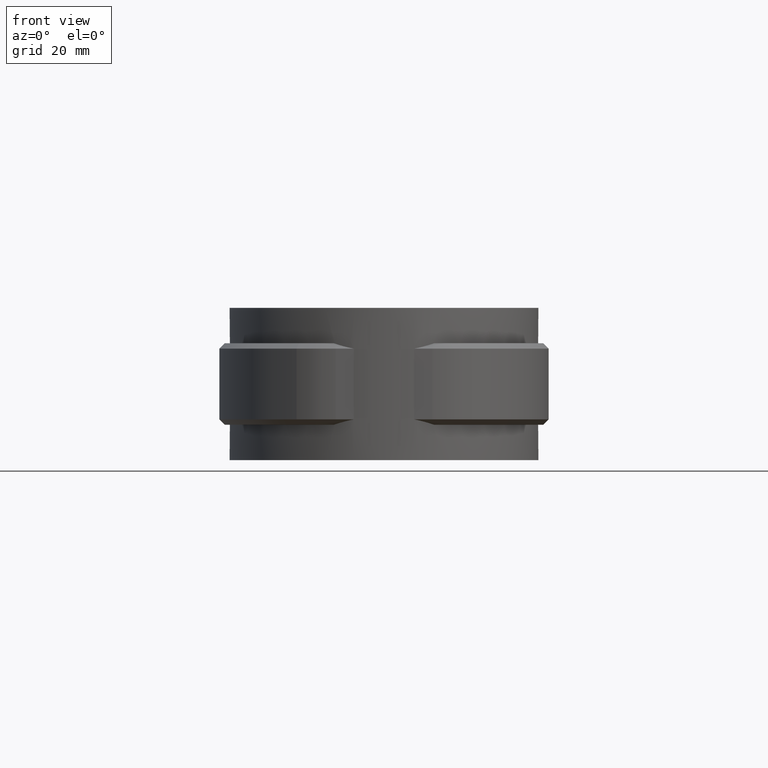
[diagram: clean part render]
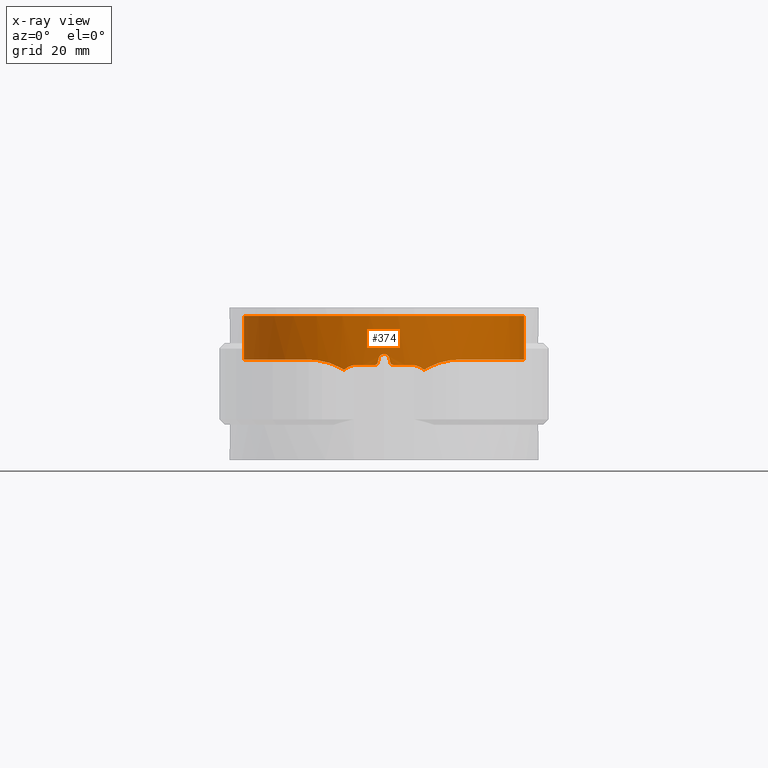
[diagram: x-ray — body ghosted, one internal face saturated and labeled with its STEP entity id]
A machine part, front view, then the same camera in x-ray: the body is ghosted and one INTERNAL B-rep face — a face not visible from any outside direction — is saturated and labeled: STEP entity #374.
In plain terms, the highlighted cylindrical surface (partial cylindrical patch) has radius 25.8 mm, axis along (0, 0, 1).
Its self-contained STEP definition (entity closure, byte-faithful):
#374 = ADVANCED_FACE( '', ( #741 ), #742, .F. );
#741 = FACE_OUTER_BOUND( '', #1683, .T. );
#742 = CYLINDRICAL_SURFACE( '', #1684, 25.8000000000000 );
#1683 = EDGE_LOOP( '', ( #3332, #3333, #3334, #3335, #3336, #3337, #3338, #3339, #3340, #3341, #3342, #3343, #3344, #3345, #3346, #3347, #3348, #3349 ) );
#1684 = AXIS2_PLACEMENT_3D( '', #3350, #3351, #3352 );
#3332 = ORIENTED_EDGE( '', *, *, #7384, .T. );
#3333 = ORIENTED_EDGE( '', *, *, #7349, .T. );
#3334 = ORIENTED_EDGE( '', *, *, #7351, .T. );
#3335 = ORIENTED_EDGE( '', *, *, #7385, .T. );
#3336 = ORIENTED_EDGE( '', *, *, #7386, .T. );
#3337 = ORIENTED_EDGE( '', *, *, #7387, .T. );
#3338 = ORIENTED_EDGE( '', *, *, #7388, .T. );
#3339 = ORIENTED_EDGE( '', *, *, #7389, .T. );
#3340 = ORIENTED_EDGE( '', *, *, #7390, .T. );
#3341 = ORIENTED_EDGE( '', *, *, #7391, .T. );
#3342 = ORIENTED_EDGE( '', *, *, #7392, .T. );
#3343 = ORIENTED_EDGE( '', *, *, #7393, .T. );
#3344 = ORIENTED_EDGE( '', *, *, #7371, .T. );
#3345 = ORIENTED_EDGE( '', *, *, #7394, .F. );
#3346 = ORIENTED_EDGE( '', *, *, #7336, .T. );
#3347 = ORIENTED_EDGE( '', *, *, #7395, .T. );
#3348 = ORIENTED_EDGE( '', *, *, #7367, .T. );
#3349 = ORIENTED_EDGE( '', *, *, #7379, .T. );
#3350 = CARTESIAN_POINT( '', ( 0.000000000000000, 0.000000000000000, 0.000000000000000 ) );
#3351 = DIRECTION( '', ( 0.000000000000000, 0.000000000000000, 1.00000000000000 ) );
#3352 = DIRECTION( '', ( 1.00000000000000, -6.12303176911189E-017, 0.000000000000000 ) );
#7336 = EDGE_CURVE( '', #8357, #8355, #8358, .T. );
#7349 = EDGE_CURVE( '', #8363, #8380, #8382, .T. );
#7351 = EDGE_CURVE( '', #8380, #8383, #8385, .T. );
#7367 = EDGE_CURVE( '', #8413, #8411, #8414, .T. );
#7371 = EDGE_CURVE( '', #8420, #8421, #8422, .T. );
#7379 = EDGE_CURVE( '', #8411, #8434, #8436, .T. );
#7384 = EDGE_CURVE( '', #8434, #8363, #8444, .T. );
#7385 = EDGE_CURVE( '', #8383, #8445, #8446, .T. );
#7386 = EDGE_CURVE( '', #8445, #8447, #8448, .T. );
#7387 = EDGE_CURVE( '', #8447, #8449, #8450, .T. );
#7388 = EDGE_CURVE( '', #8449, #8451, #8452, .T. );
#7389 = EDGE_CURVE( '', #8451, #8453, #8454, .T. );
#7390 = EDGE_CURVE( '', #8453, #8455, #8456, .T. );
#7391 = EDGE_CURVE( '', #8455, #8457, #8458, .T. );
#7392 = EDGE_CURVE( '', #8457, #8459, #8460, .T. );
#7393 = EDGE_CURVE( '', #8459, #8420, #8461, .T. );
#7394 = EDGE_CURVE( '', #8357, #8421, #8462, .T. );
#7395 = EDGE_CURVE( '', #8355, #8413, #8463, .T. );
#8355 = VERTEX_POINT( '', #10169 );
#8357 = VERTEX_POINT( '', #10171 );
#8358 = CIRCLE( '', #10172, 25.8000000000000 );
#8363 = VERTEX_POINT( '', #10178 );
#8380 = VERTEX_POINT( '', #10252 );
#8382 = B_SPLINE_CURVE_WITH_KNOTS( '', 3, ( #10255, #10256, #10257, #10258, #10259, #10260, #10261, #10262, #10263, #10264 ), .UNSPECIFIED., .F., .F., ( 4, 2, 2, 2, 4 ), ( 0.00847385294775890, 0.00913614341819713, 0.00979843388863536, 0.0104607243590736, 0.0111230148295118 ), .UNSPECIFIED. );
#8383 = VERTEX_POINT( '', #10265 );
#8385 = CIRCLE( '', #10268, 25.8000000000000 );
#8411 = VERTEX_POINT( '', #10554 );
#8413 = VERTEX_POINT( '', #10562 );
#8414 = B_SPLINE_CURVE_WITH_KNOTS( '', 3, ( #10563, #10564, #10565, #10566, #10567, #10568, #10569, #10570, #10571, #10572, #10573, #10574, #10575, #10576, #10577, #10578, #10579, #10580, #10581, #10582, #10583, #10584, #10585, #10586, #10587, #10588, #10589, #10590, #10591, #10592, #10593, #10594, #10595, #10596, #10597, #10598, #10599, #10600, #10601, #10602, #10603, #10604, #10605, #10606, #10607, #10608 ), .UNSPECIFIED., .F., .F., ( 4, 2, 2, 2, 2, 2, 2, 2, 2, 2, 2, 2, 2, 2, 2, 2, 2, 2, 2, 2, 2, 2, 4 ), ( 3.46944695195361E-018, 0.00373618031947293, 0.00747236063894587, 0.00934045079868233, 0.0112085409584188, 0.0149447212778917, 0.0168128114376282, 0.0186809015973647, 0.0224170819168376, 0.0242851720765741, 0.0261532622363106, 0.0298894425557836, 0.0336256228752565, 0.0354937130349930, 0.0373618031947295, 0.0410979835142024, 0.0429660736739389, 0.0448341638336754, 0.0485703441531484, 0.0504384343128848, 0.0523065244726213, 0.0560427047920943, 0.0597788851115672 ), .UNSPECIFIED. );
#8420 = VERTEX_POINT( '', #10644 );
#8421 = VERTEX_POINT( '', #10645 );
#8422 = B_SPLINE_CURVE_WITH_KNOTS( '', 3, ( #10646, #10647, #10648, #10649, #10650, #10651, #10652, #10653, #10654, #10655, #10656, #10657, #10658, #10659, #10660, #10661, #10662, #10663, #10664, #10665, #10666, #10667, #10668, #10669, #10670, #10671, #10672, #10673, #10674, #10675, #10676, #10677, #10678, #10679, #10680, #10681, #10682, #10683, #10684, #10685, #10686, #10687, #10688, #10689, #10690, #10691 ), .UNSPECIFIED., .F., .F., ( 4, 2, 2, 2, 2, 2, 2, 2, 2, 2, 2, 2, 2, 2, 2, 2, 2, 2, 2, 2, 2, 2, 4 ), ( 9.81307786677359E-018, 0.00373617763623475, 0.00747235527246950, 0.00934044409058687, 0.0112085329087042, 0.0149447105449390, 0.0168127993630564, 0.0186808881811737, 0.0224170658174085, 0.0242851546355259, 0.0261532434536433, 0.0298894210898780, 0.0336255987261128, 0.0354936875442301, 0.0373617763623475, 0.0410979539985822, 0.0429660428166996, 0.0448341316348170, 0.0485703092710517, 0.0504383980891691, 0.0523064869072865, 0.0560426645435212, 0.0597788421797560 ), .UNSPECIFIED. );
#8434 = VERTEX_POINT( '', #10788 );
#8436 = B_SPLINE_CURVE_WITH_KNOTS( '', 3, ( #10794, #10795, #10796, #10797, #10798, #10799, #10800, #10801, #10802, #10803 ), .UNSPECIFIED., .F., .F., ( 4, 2, 2, 2, 4 ), ( 0.000000000000000, 0.00171733910747662, 0.00343467821495323, 0.00515201732242985, 0.00686935642990647 ), .UNSPECIFIED. );
#8444 = B_SPLINE_CURVE_WITH_KNOTS( '', 3, ( #10832, #10833, #10834, #10835 ), .UNSPECIFIED., .F., .F., ( 4, 4 ), ( 7.11061015606816E-016, 0.000883886196938729 ), .UNSPECIFIED. );
#8445 = VERTEX_POINT( '', #10836 );
#8446 = B_SPLINE_CURVE_WITH_KNOTS( '', 3, ( #10837, #10838, #10839, #10840, #10841, #10842 ), .UNSPECIFIED., .F., .F., ( 4, 2, 4 ), ( 8.20849171219253E-018, 0.000336076006616285, 0.000672152013232562 ), .UNSPECIFIED. );
#8447 = VERTEX_POINT( '', #10843 );
#8448 = ELLIPSE( '', #10844, 117.533393289804, 25.8000000000000 );
#8449 = VERTEX_POINT( '', #10845 );
#8450 = B_SPLINE_CURVE_WITH_KNOTS( '', 3, ( #10846, #10847, #10848, #10849, #10850, #10851, #10852, #10853, #10854, #10855 ), .UNSPECIFIED., .F., .F., ( 4, 2, 2, 2, 4 ), ( 1.08420217248550E-019, 0.000671617565681660, 0.00134323513136332, 0.00201485269704498, 0.00268647026272664 ), .UNSPECIFIED. );
#8451 = VERTEX_POINT( '', #10856 );
#8452 = ELLIPSE( '', #10857, 117.533453246316, 25.8000000000000 );
#8453 = VERTEX_POINT( '', #10858 );
#8454 = B_SPLINE_CURVE_WITH_KNOTS( '', 3, ( #10859, #10860, #10861, #10862, #10863, #10864 ), .UNSPECIFIED., .F., .F., ( 4, 2, 4 ), ( 2.04566856771261E-018, 0.000336081783648389, 0.000672163567296775 ), .UNSPECIFIED. );
#8455 = VERTEX_POINT( '', #10865 );
#8456 = CIRCLE( '', #10866, 25.8000000000000 );
#8457 = VERTEX_POINT( '', #10867 );
#8458 = B_SPLINE_CURVE_WITH_KNOTS( '', 3, ( #10868, #10869, #10870, #10871, #10872, #10873, #10874, #10875, #10876, #10877 ), .UNSPECIFIED., .F., .F., ( 4, 2, 2, 2, 4 ), ( 2.60208521396521E-018, 0.000662919875601351, 0.00132583975120270, 0.00198875962680405, 0.00265167950240540 ), .UNSPECIFIED. );
#8459 = VERTEX_POINT( '', #10878 );
#8460 = B_SPLINE_CURVE_WITH_KNOTS( '', 3, ( #10879, #10880, #10881, #10882 ), .UNSPECIFIED., .F., .F., ( 4, 4 ), ( 0.00814114400030311, 0.00902205076331049 ), .UNSPECIFIED. );
#8461 = B_SPLINE_CURVE_WITH_KNOTS( '', 3, ( #10883, #10884, #10885, #10886, #10887, #10888, #10889, #10890, #10891, #10892 ), .UNSPECIFIED., .F., .F., ( 4, 2, 2, 2, 4 ), ( 0.000000000000000, 0.00170899834983024, 0.00341799669966047, 0.00512699504949071, 0.00683599339932094 ), .UNSPECIFIED. );
#8462 = LINE( '', #10893, #10894 );
#8463 = LINE( '', #10895, #10896 );
#10169 = CARTESIAN_POINT( '', ( 6.03237410071943, 25.0848652120949, 0.000000000000000 ) );
#10171 = CARTESIAN_POINT( '', ( -6.03237410071944, 25.0848652120949, 0.000000000000000 ) );
#10172 = AXIS2_PLACEMENT_3D( '', #14694, #14695, #14696 );
#10178 = CARTESIAN_POINT( '', ( 7.36770156713656, -24.7256339376286, -9.92240629870049 ) );
#10252 = CARTESIAN_POINT( '', ( 5.00000000000000, -25.3108672312902, -9.00000000000000 ) );
#10255 = CARTESIAN_POINT( '', ( 7.36770156713660, -24.7256339376286, -9.92240629870043 ) );
#10256 = CARTESIAN_POINT( '', ( 7.20768725923874, -24.7733147238943, -9.77542187389251 ) );
#10257 = CARTESIAN_POINT( '', ( 7.03611587404372, -24.8227539171649, -9.64504375721799 ) );
#10258 = CARTESIAN_POINT( '', ( 6.67007827215876, -24.9236051659540, -9.41659578297038 ) );
#10259 = CARTESIAN_POINT( '', ( 6.47382625859016, -24.9754378902383, -9.31811712369700 ) );
#10260 = CARTESIAN_POINT( '', ( 6.07189689829047, -25.0761837665163, -9.16120088677748 ) );
#10261 = CARTESIAN_POINT( '', ( 5.86504202007062, -25.1254630968022, -9.10166789016048 ) );
#10262 = CARTESIAN_POINT( '', ( 5.43923193058691, -25.2210699561150, -9.02091475580043 ) );
#10263 = CARTESIAN_POINT( '', ( 5.21976287136961, -25.2674544810748, -8.99999999999997 ) );
#10264 = CARTESIAN_POINT( '', ( 5.00000000000000, -25.3108672312902, -8.99999999999997 ) );
#10265 = CARTESIAN_POINT( '', ( 1.64999999999995, -25.7471843120758, -9.00000000000000 ) );
#10268 = AXIS2_PLACEMENT_3D( '', #14704, #14705, #14706 );
#10554 = CARTESIAN_POINT( '', ( 14.0746045988059, -21.6228005907485, -8.00316201356002 ) );
#10562 = CARTESIAN_POINT( '', ( 6.03237410071944, 25.0848652120949, -8.00421859647345 ) );
#10563 = CARTESIAN_POINT( '', ( 6.03237410071942, 25.0848652120949, -8.00421859647343 ) );
#10564 = CARTESIAN_POINT( '', ( 7.26068028571261, 24.7894838195517, -8.00544838312871 ) );
#10565 = CARTESIAN_POINT( '', ( 8.45213205266304, 24.4080579795106, -8.00701797057330 ) );
#10566 = CARTESIAN_POINT( '', ( 10.7643649610826, 23.4802103387390, -8.00789522628143 ) );
#10567 = CARTESIAN_POINT( '', ( 11.8851383455205, 22.9337704286318, -8.00721043540803 ) );
#10568 = CARTESIAN_POINT( '', ( 13.5121261110203, 21.9876336346415, -8.00533507802577 ) );
#10569 = CARTESIAN_POINT( '', ( 14.0475094696409, 21.6495534350301, -8.00459736652658 ) );
#10570 = CARTESIAN_POINT( '', ( 15.0858771380485, 20.9392453830500, -8.00344518684758 ) );
#10571 = CARTESIAN_POINT( '', ( 15.5893780365250, 20.5669859111848, -8.00307121611898 ) );
#10572 = CARTESIAN_POINT( '', ( 17.0539102108764, 19.4000673881720, -8.00324725469724 ) );
#10573 = CARTESIAN_POINT( '', ( 17.9692068879716, 18.5555254471872, -8.00456444818308 ) );
#10574 = CARTESIAN_POINT( '', ( 19.2504369275996, 17.1886782009989, -8.00562225454128 ) );
#10575 = CARTESIAN_POINT( '', ( 19.6621689044348, 16.7163258541374, -8.00584695541366 ) );
#10576 = CARTESIAN_POINT( '', ( 20.4541782167481, 15.7373132893048, -8.00590098524754 ) );
#10577 = CARTESIAN_POINT( '', ( 20.8336421104671, 15.2312946191079, -8.00572816411906 ) );
#10578 = CARTESIAN_POINT( '', ( 21.9063658924988, 13.6866011422974, -8.00477663601862 ) );
#10579 = CARTESIAN_POINT( '', ( 22.5408267318255, 12.6136228621821, -8.00346869992973 ) );
#10580 = CARTESIAN_POINT( '', ( 23.3737383452074, 10.9405869877108, -8.00305964478180 ) );
#10581 = CARTESIAN_POINT( '', ( 23.6315002028938, 10.3722714708539, -8.00331003816414 ) );
#10582 = CARTESIAN_POINT( '', ( 24.1066988378430, 9.21405928166303, -8.00422816277125 ) );
#10583 = CARTESIAN_POINT( '', ( 24.3245104117547, 8.62301146299956, -8.00485155523670 ) );
#10584 = CARTESIAN_POINT( '', ( 24.9131778138079, 6.82393618580402, -8.00648074527607 ) );
#10585 = CARTESIAN_POINT( '', ( 25.2134222870090, 5.61023799728685, -8.00710157738204 ) );
#10586 = CARTESIAN_POINT( '', ( 25.6366033037460, 3.15531374915431, -8.00637479135126 ) );
#10587 = CARTESIAN_POINT( '', ( 25.7595258191951, 1.91408551083722, -8.00503048875464 ) );
#10588 = CARTESIAN_POINT( '', ( 25.8076201398247, 0.0310831410522792, -8.00350455443992 ) );
#10589 = CARTESIAN_POINT( '', ( 25.8006211446675, -0.602429536608931, -8.00311877270820 ) );
#10590 = CARTESIAN_POINT( '', ( 25.7406884620227, -1.85793710828312, -8.00319741707570 ) );
#10591 = CARTESIAN_POINT( '', ( 25.6879657950527, -2.48147131136124, -8.00358598945745 ) );
#10592 = CARTESIAN_POINT( '', ( 25.4629977867101, -4.33968777006187, -8.00492496893899 ) );
#10593 = CARTESIAN_POINT( '', ( 25.2242963534625, -5.56204767092466, -8.00594267936942 ) );
#10594 = CARTESIAN_POINT( '', ( 24.7326013388371, -7.37080770468106, -8.00611389959975 ) );
#10595 = CARTESIAN_POINT( '', ( 24.5463436228588, -7.96958187379111, -8.00597151630470 ) );
#10596 = CARTESIAN_POINT( '', ( 24.1279280144699, -9.15861944962663, -8.00535992492283 ) );
#10597 = CARTESIAN_POINT( '', ( 23.8965456258034, -9.74615393389852, -8.00489206242498 ) );
#10598 = CARTESIAN_POINT( '', ( 23.1448142253165, -11.4685313738498, -8.00348680900644 ) );
#10599 = CARTESIAN_POINT( '', ( 22.5644432085294, -12.5713524115484, -8.00277801196227 ) );
#10600 = CARTESIAN_POINT( '', ( 21.5769460371601, -14.1585186160504, -8.00401119041424 ) );
#10601 = CARTESIAN_POINT( '', ( 21.2282131341587, -14.6763522786011, -8.00461999141825 ) );
#10602 = CARTESIAN_POINT( '', ( 20.4909914895077, -15.6892197655520, -8.00570811993847 ) );
#10603 = CARTESIAN_POINT( '', ( 20.1012321410512, -16.1857328639174, -8.00618751382072 ) );
#10604 = CARTESIAN_POINT( '', ( 18.8793839121942, -17.6294864025608, -8.00697515163917 ) );
#10605 = CARTESIAN_POINT( '', ( 18.0029635594343, -18.5227607714454, -8.00650357444221 ) );
#10606 = CARTESIAN_POINT( '', ( 16.1299631380105, -20.1748272033478, -8.00444573249523 ) );
#10607 = CARTESIAN_POINT( '', ( 15.1333867818155, -20.9336234178111, -8.00285361401559 ) );
#10608 = CARTESIAN_POINT( '', ( 14.0746045988058, -21.6228005907485, -8.00316201355999 ) );
#10644 = CARTESIAN_POINT( '', ( -14.0746045988059, -21.6228005907485, -8.00316201356002 ) );
#10645 = CARTESIAN_POINT( '', ( -6.03237410071941, 25.0848652120949, -8.00421859647343 ) );
#10646 = CARTESIAN_POINT( '', ( -14.0746045988059, -21.6228005907485, -8.00316201356007 ) );
#10647 = CARTESIAN_POINT( '', ( -15.1333869034552, -20.9336233386340, -8.00285361398024 ) );
#10648 = CARTESIAN_POINT( '', ( -16.1286590915959, -20.1756829817981, -8.00444351331206 ) );
#10649 = CARTESIAN_POINT( '', ( -17.9974199617546, -18.5279438307432, -8.00649826732587 ) );
#10650 = CARTESIAN_POINT( '', ( -18.8708952578265, -17.6381305472235, -8.00697221119571 ) );
#10651 = CARTESIAN_POINT( '', ( -20.0877556595109, -16.2023349188312, -8.00620031617392 ) );
#10652 = CARTESIAN_POINT( '', ( -20.4792375666224, -15.7046653910953, -8.00572391010486 ) );
#10653 = CARTESIAN_POINT( '', ( -21.2202480234852, -14.6879801258782, -8.00463326545930 ) );
#10654 = CARTESIAN_POINT( '', ( -21.5702524945042, -14.1687622732477, -8.00402173339329 ) );
#10655 = CARTESIAN_POINT( '', ( -22.5601732933537, -12.5792308629640, -8.00277903396344 ) );
#10656 = CARTESIAN_POINT( '', ( -23.1403053144642, -11.4772030165014, -8.00347968288031 ) );
#10657 = CARTESIAN_POINT( '', ( -23.8906133537362, -9.76056214387442, -8.00488033213110 ) );
#10658 = CARTESIAN_POINT( '', ( -24.1206574138140, -9.17770784552322, -8.00534659262012 ) );
#10659 = CARTESIAN_POINT( '', ( -24.5396280094886, -7.99018726490686, -8.00596431612964 ) );
#10660 = CARTESIAN_POINT( '', ( -24.7280028918479, -7.38639645245477, -8.00611246593056 ) );
#10661 = CARTESIAN_POINT( '', ( -25.2223318830471, -5.57188412206545, -8.00594933163577 ) );
#10662 = CARTESIAN_POINT( '', ( -25.4614001083746, -4.34850014713748, -8.00493293337967 ) );
#10663 = CARTESIAN_POINT( '', ( -25.6868025741090, -2.49324302282103, -8.00359367513219 ) );
#10664 = CARTESIAN_POINT( '', ( -25.7396484485914, -1.87144706959028, -8.00320440767271 ) );
#10665 = CARTESIAN_POINT( '', ( -25.8001195905802, -0.621003625682371, -8.00311394769907 ) );
#10666 = CARTESIAN_POINT( '', ( -25.8077131099012, 0.00885291084441690, -8.00348911961148 ) );
#10667 = CARTESIAN_POINT( '', ( -25.7607831144393, 1.90120768954985, -8.00501500809569 ) );
#10668 = CARTESIAN_POINT( '', ( -25.6378177513319, 3.14543096940045, -8.00636745856395 ) );
#10669 = CARTESIAN_POINT( '', ( -25.2155828913343, 5.60051912629720, -8.00710307200058 ) );
#10670 = CARTESIAN_POINT( '', ( -24.9162994156386, 6.81138135822010, -8.00648884303230 ) );
#10671 = CARTESIAN_POINT( '', ( -24.3318565661995, 8.60203343321275, -8.00487215116755 ) );
#10672 = CARTESIAN_POINT( '', ( -24.1133831145785, 9.19672379235804, -8.00424471066269 ) );
#10673 = CARTESIAN_POINT( '', ( -23.6369981620119, 10.3598885916987, -8.00331711924920 ) );
#10674 = CARTESIAN_POINT( '', ( -23.3787710228885, 10.9298834678381, -8.00306050024976 ) );
#10675 = CARTESIAN_POINT( '', ( -22.5452790238145, 12.6058534968097, -8.00345994521201 ) );
#10676 = CARTESIAN_POINT( '', ( -21.9115063398552, 13.6779892503443, -8.00476747713705 ) );
#10677 = CARTESIAN_POINT( '', ( -20.8431886127966, 15.2181425757185, -8.00572195685283 ) );
#10678 = CARTESIAN_POINT( '', ( -20.4673975881742, 15.7201417254844, -8.00589763630383 ) );
#10679 = CARTESIAN_POINT( '', ( -19.6754052329038, 16.7007679111691, -8.00585196955021 ) );
#10680 = CARTESIAN_POINT( '', ( -19.2608462862721, 17.1770838694947, -8.00562927483305 ) );
#10681 = CARTESIAN_POINT( '', ( -17.9763559965235, 18.5488615493912, -8.00457344756959 ) );
#10682 = CARTESIAN_POINT( '', ( -17.0605686434363, 19.3940711707312, -8.00325604261762 ) );
#10683 = CARTESIAN_POINT( '', ( -15.5991114250348, 20.5595713112542, -8.00306844564856 ) );
#10684 = CARTESIAN_POINT( '', ( -15.0972718058432, 20.9309515522717, -8.00343531100326 ) );
#10685 = CARTESIAN_POINT( '', ( -14.0637517181760, 21.6389287274707, -8.00457664906139 ) );
#10686 = CARTESIAN_POINT( '', ( -13.5303795565576, 21.9764945305707, -8.00531188503511 ) );
#10687 = CARTESIAN_POINT( '', ( -11.8960292207845, 22.9284630964466, -8.00720209548951 ) );
#10688 = CARTESIAN_POINT( '', ( -10.7713225565966, 23.4771799165608, -8.00789555102751 ) );
#10689 = CARTESIAN_POINT( '', ( -8.45364679338599, 24.4076877713864, -8.00702085176591 ) );
#10690 = CARTESIAN_POINT( '', ( -7.26067979377365, 24.7894839378526, -8.00544838263619 ) );
#10691 = CARTESIAN_POINT( '', ( -6.03237410071941, 25.0848652120949, -8.00421859647343 ) );
#10788 = CARTESIAN_POINT( '', ( 8.09912282365073, -24.4957998335916, -9.48095950445834 ) );
#10794 = CARTESIAN_POINT( '', ( 14.0746045988059, -21.6228005907485, -8.00316201356003 ) );
#10795 = CARTESIAN_POINT( '', ( 13.5933316659828, -21.9360683474003, -8.01205812006769 ) );
#10796 = CARTESIAN_POINT( '', ( 13.1039277943613, -22.2317738655920, -8.04378504747904 ) );
#10797 = CARTESIAN_POINT( '', ( 12.1096078854509, -22.7886394879395, -8.15741144226582 ) );
#10798 = CARTESIAN_POINT( '', ( 11.6033085274296, -23.0503512025027, -8.23960686606617 ) );
#10799 = CARTESIAN_POINT( '', ( 10.5891936704272, -23.5334748125223, -8.46483333514526 ) );
#10800 = CARTESIAN_POINT( '', ( 10.0777407759014, -23.7565423147445, -8.60845486933235 ) );
#10801 = CARTESIAN_POINT( '', ( 9.07045988660652, -24.1590752998531, -8.97584538473676 ) );
#10802 = CARTESIAN_POINT( '', ( 8.57539099517002, -24.3383298001851, -9.19776237732006 ) );
#10803 = CARTESIAN_POINT( '', ( 8.09912282365083, -24.4957998335922, -9.48095950445951 ) );
#10832 = CARTESIAN_POINT( '', ( 8.09912282365084, -24.4957998335923, -9.48095950445954 ) );
#10833 = CARTESIAN_POINT( '', ( 7.85298416235659, -24.5771814281111, -9.62242073317317 ) );
#10834 = CARTESIAN_POINT( '', ( 7.60882860535630, -24.6537833204978, -9.76904265677678 ) );
#10835 = CARTESIAN_POINT( '', ( 7.36770156713655, -24.7256339376286, -9.92240629870048 ) );
#10836 = CARTESIAN_POINT( '', ( 1.16219499999999, -25.7738104047883, -8.60975599999999 ) );
#10837 = CARTESIAN_POINT( '', ( 1.64999999999995, -25.7471843120758, -8.99999999999995 ) );
#10838 = CARTESIAN_POINT( '', ( 1.53659676879307, -25.7544517215611, -9.00000000048667 ) );
#10839 = CARTESIAN_POINT( '', ( 1.42648268482783, -25.7606877134254, -8.96144045921542 ) );
#10840 = CARTESIAN_POINT( '', ( 1.24913421574478, -25.7698961586925, -8.81967787855504 ) );
#10841 = CARTESIAN_POINT( '', ( 1.18713939444587, -25.7726856098881, -8.72061997753684 ) );
#10842 = CARTESIAN_POINT( '', ( 1.16219499999999, -25.7738104047883, -8.60975599999999 ) );
#10843 = CARTESIAN_POINT( '', ( 0.975609757981813, -25.7815473856813, -7.78048781325256 ) );
#10844 = AXIS2_PLACEMENT_3D( '', #14707, #14708, #14709 );
#10845 = CARTESIAN_POINT( '', ( -0.975610000000026, -25.7815473765230, -7.78048800000004 ) );
#10846 = CARTESIAN_POINT( '', ( 0.975609757981816, -25.7815473856813, -7.78048781325256 ) );
#10847 = CARTESIAN_POINT( '', ( 0.925760723739448, -25.7834337427531, -7.55893664008494 ) );
#10848 = CARTESIAN_POINT( '', ( 0.802002361521335, -25.7881415443926, -7.36098152569801 ) );
#10849 = CARTESIAN_POINT( '', ( 0.447411547054208, -25.7967299285990, -7.07729999000686 ) );
#10850 = CARTESIAN_POINT( '', ( 0.227096393989775, -25.8000000079439, -6.99999981432398 ) );
#10851 = CARTESIAN_POINT( '', ( -0.227098198963333, -25.7999999920561, -7.00000017880908 ) );
#10852 = CARTESIAN_POINT( '', ( -0.447440716005387, -25.7967293170502, -7.07731810023000 ) );
#10853 = CARTESIAN_POINT( '', ( -0.802000802814022, -25.7881414871987, -7.36098518474043 ) );
#10854 = CARTESIAN_POINT( '', ( -0.925761005968289, -25.7834337325418, -7.55893680752233 ) );
#10855 = CARTESIAN_POINT( '', ( -0.975610000000026, -25.7815473765230, -7.78048800000004 ) );
#10856 = CARTESIAN_POINT( '', ( -1.16219512100914, -25.7738103993318, -8.60975609337373 ) );
#10857 = AXIS2_PLACEMENT_3D( '', #14710, #14711, #14712 );
#10858 = CARTESIAN_POINT( '', ( -1.65000000000003, -25.7471843120758, -9.00000000000000 ) );
#10859 = CARTESIAN_POINT( '', ( -1.16219512100915, -25.7738103993318, -8.60975609337372 ) );
#10860 = CARTESIAN_POINT( '', ( -1.18713950714722, -25.7726856046888, -8.72062003620871 ) );
#10861 = CARTESIAN_POINT( '', ( -1.24912830462559, -25.7698964565163, -8.81967210719460 ) );
#10862 = CARTESIAN_POINT( '', ( -1.42648332301461, -25.7606876893872, -8.96144194367223 ) );
#10863 = CARTESIAN_POINT( '', ( -1.53659680002685, -25.7544517195595, -8.99999999999994 ) );
#10864 = CARTESIAN_POINT( '', ( -1.65000000000003, -25.7471843120758, -8.99999999999994 ) );
#10865 = CARTESIAN_POINT( '', ( -5.00000000000005, -25.3108672312902, -9.00000000000000 ) );
#10866 = AXIS2_PLACEMENT_3D( '', #14713, #14714, #14715 );
#10867 = CARTESIAN_POINT( '', ( -7.36770156712420, -24.7256339376233, -9.92240629868903 ) );
#10868 = CARTESIAN_POINT( '', ( -5.00000000000005, -25.3108672312902, -8.99999999999997 ) );
#10869 = CARTESIAN_POINT( '', ( -5.21995528441451, -25.2674164711079, -8.99999999999997 ) );
#10870 = CARTESIAN_POINT( '', ( -5.43584985592567, -25.2217917361868, -9.02054471094434 ) );
#10871 = CARTESIAN_POINT( '', ( -5.86001060049525, -25.1266296546479, -9.10044768057855 ) );
#10872 = CARTESIAN_POINT( '', ( -6.06969867324216, -25.0767292122482, -9.16038888561397 ) );
#10873 = CARTESIAN_POINT( '', ( -6.47473551434311, -24.9752155143391, -9.31842604838392 ) );
#10874 = CARTESIAN_POINT( '', ( -6.66721622070000, -24.9243694670225, -9.41507172844745 ) );
#10875 = CARTESIAN_POINT( '', ( -7.03289440063460, -24.8236653581160, -9.64277534606432 ) );
#10876 = CARTESIAN_POINT( '', ( -7.20770846718971, -24.7733084043857, -9.77544135489216 ) );
#10877 = CARTESIAN_POINT( '', ( -7.36770156712550, -24.7256339376319, -9.92240629869021 ) );
#10878 = CARTESIAN_POINT( '', ( -8.09912282365084, -24.4957998335923, -9.48095950445954 ) );
#10879 = CARTESIAN_POINT( '', ( -7.36770156713405, -24.7256339376293, -9.92240629870193 ) );
#10880 = CARTESIAN_POINT( '', ( -7.60901589127839, -24.6537275133631, -9.76892353761307 ) );
#10881 = CARTESIAN_POINT( '', ( -7.85316249557002, -24.5771224652436, -9.62231824120641 ) );
#10882 = CARTESIAN_POINT( '', ( -8.09912282365084, -24.4957998335923, -9.48095950445953 ) );
#10883 = CARTESIAN_POINT( '', ( -8.09912282365084, -24.4957998335923, -9.48095950445954 ) );
#10884 = CARTESIAN_POINT( '', ( -8.57657903642960, -24.3379369943921, -9.19705594785080 ) );
#10885 = CARTESIAN_POINT( '', ( -9.07081284882140, -24.1588846843103, -8.97583356297612 ) );
#10886 = CARTESIAN_POINT( '', ( -10.0733104340237, -23.7583621453149, -8.60995432834868 ) );
#10887 = CARTESIAN_POINT( '', ( -10.5842856105011, -23.5357052720704, -8.46608512978654 ) );
#10888 = CARTESIAN_POINT( '', ( -11.6001945013900, -23.0519416116809, -8.24013798207931 ) );
#10889 = CARTESIAN_POINT( '', ( -12.1055395017180, -22.7908410417145, -8.15796387919716 ) );
#10890 = CARTESIAN_POINT( '', ( -13.1027216568501, -22.2325258843764, -8.04383582074930 ) );
#10891 = CARTESIAN_POINT( '', ( -13.5929789952992, -21.9362979060277, -8.01206463902135 ) );
#10892 = CARTESIAN_POINT( '', ( -14.0746045988058, -21.6228005907485, -8.00316201355999 ) );
#10893 = CARTESIAN_POINT( '', ( -6.03237410071944, 25.0848652120949, 0.000000000000000 ) );
#10894 = VECTOR( '', #14716, 1000.00000000000 );
#10895 = CARTESIAN_POINT( '', ( 6.03237410071943, 25.0848652120949, 0.000000000000000 ) );
#10896 = VECTOR( '', #14717, 1000.00000000000 );
#14694 = CARTESIAN_POINT( '', ( 0.000000000000000, 0.000000000000000, 0.000000000000000 ) );
#14695 = DIRECTION( '', ( 0.000000000000000, 0.000000000000000, 1.00000000000000 ) );
#14696 = DIRECTION( '', ( 1.00000000000000, -6.12303176911189E-017, 0.000000000000000 ) );
#14704 = CARTESIAN_POINT( '', ( 0.000000000000000, 0.000000000000000, -9.00000000000001 ) );
#14705 = DIRECTION( '', ( 6.12303176911189E-017, -3.13145149531439E-016, -1.00000000000000 ) );
#14706 = DIRECTION( '', ( 0.000000000000000, 1.00000000000000, -3.13145149531439E-016 ) );
#14707 = CARTESIAN_POINT( '', ( 0.000000000000000, 0.000000000000000, -3.44444212055032 ) );
#14708 = DIRECTION( '', ( -0.975609781292647, -1.70596433957388E-016, -0.219512083143762 ) );
#14709 = DIRECTION( '', ( 0.219512083143762, 3.83841770684856E-017, -0.975609781292647 ) );
#14710 = CARTESIAN_POINT( '', ( 0.000000000000000, 0.000000000000000, -3.44443890776446 ) );
#14711 = DIRECTION( '', ( 0.975609806487711, 3.31181834532395E-017, -0.219511971165610 ) );
#14712 = DIRECTION( '', ( -0.219511971165610, -7.45158328965245E-018, -0.975609806487711 ) );
#14713 = CARTESIAN_POINT( '', ( 0.000000000000000, 0.000000000000000, -9.00000000000001 ) );
#14714 = DIRECTION( '', ( 6.12303176911189E-017, -3.13145149531439E-016, -1.00000000000000 ) );
#14715 = DIRECTION( '', ( 0.000000000000000, 1.00000000000000, -3.13145149531439E-016 ) );
#14716 = DIRECTION( '', ( 0.000000000000000, 0.000000000000000, -1.00000000000000 ) );
#14717 = DIRECTION( '', ( 0.000000000000000, 0.000000000000000, -1.00000000000000 ) );